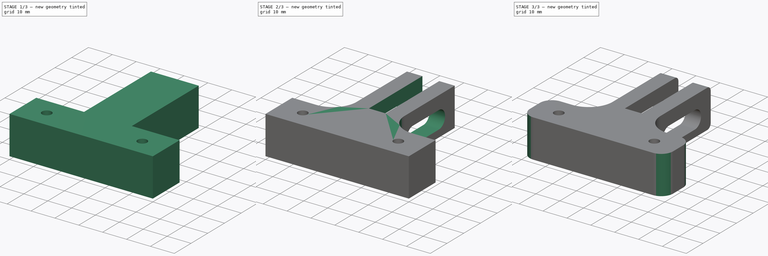
[diagram: build sequence overview — one tinted view per stage of 3, left to right]
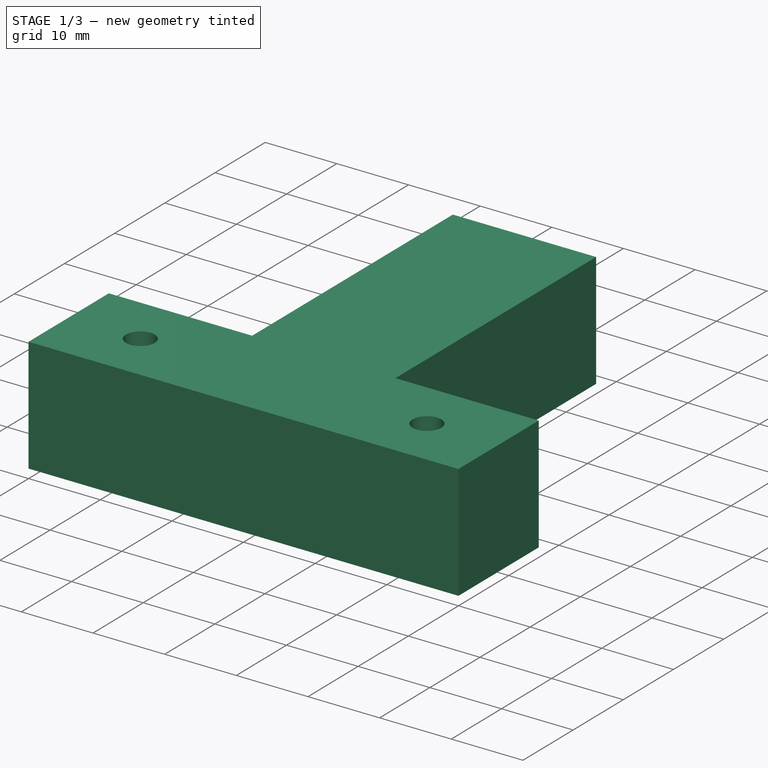
[diagram: stage 1 of 3 — iso view after this stage's code; geometry added in this stage tinted green]
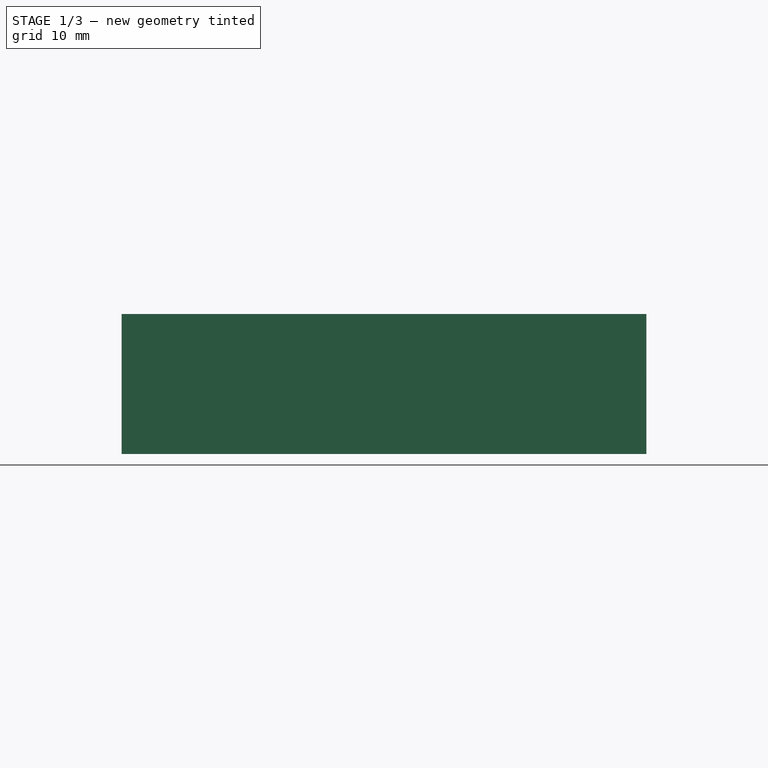
[diagram: stage 1 of 3 — front view after this stage's code; geometry added in this stage tinted green]
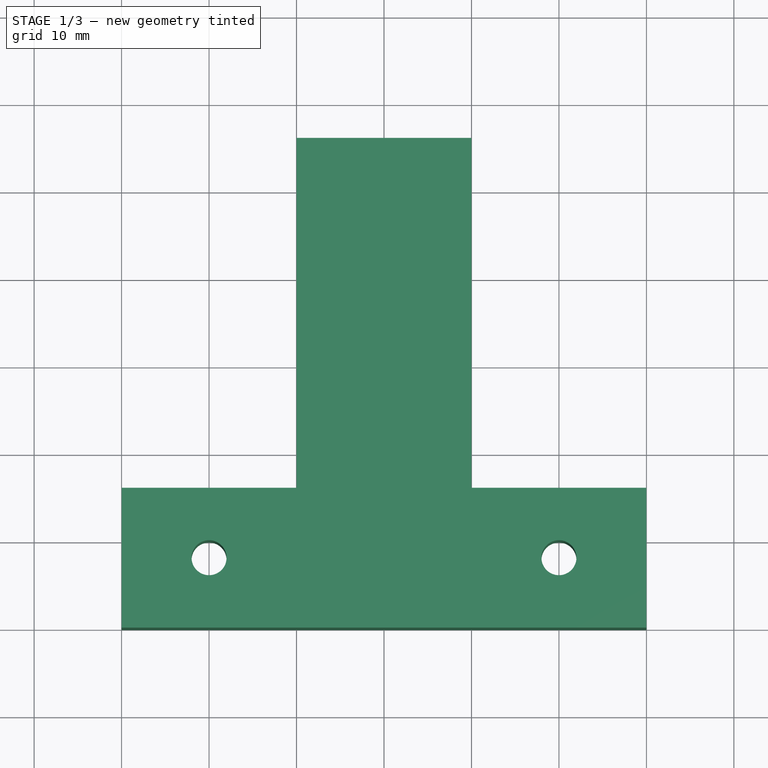
[diagram: stage 1 of 3 — top view after this stage's code; geometry added in this stage tinted green]
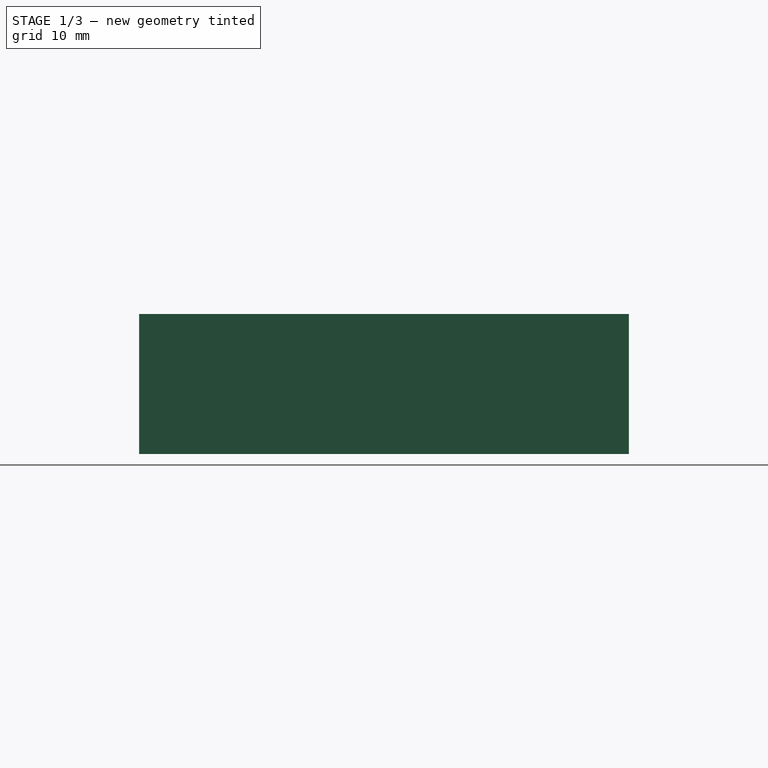
[diagram: stage 1 of 3 — right view after this stage's code; geometry added in this stage tinted green]
FCSTD DOCUMENT  (FreeCAD 1.0RUnknown)
Label: water-valve-bracket
License: All rights reserved
LicenseURL: https://en.wikipedia.org/wiki/All_rights_reserved
objects: Sketcher::SketchObject×4, PartDesign::Fillet×3, PartDesign::Pad×2, PartDesign::Pocket×2, PartDesign::Body×1
note: 30 computed .brp shape members not serialized (recipe doc carries the construction recipe); baked Part::Feature solids carry a one-line shape summary decoded from their .brp

FEATURE [Sketcher::SketchObject] Sketch
  ArcFitTolerance = 1e-06
  AttachmentSupport = -> [XY_Plane]
  FullyConstrained = true
  MakeInternals = false
  MapMode = 5
  sketch-geometry (9):
    g0: LineSegment StartX=0 StartY=0 StartZ=0 EndX=60 EndY=0 EndZ=0
    g1: LineSegment StartX=60 StartY=0 StartZ=0 EndX=60 EndY=16 EndZ=0
    g2: LineSegment StartX=60 StartY=16 StartZ=0 EndX=0 EndY=16 EndZ=0
    g3: LineSegment StartX=0 StartY=16 StartZ=0 EndX=0 EndY=0 EndZ=0
    g4: Circle CenterX=10 CenterY=8 CenterZ=0 NormalX=0 NormalY=0 NormalZ=1 AngleXU=0 Radius=2
    g5: Circle CenterX=50 CenterY=8 CenterZ=0 NormalX=0 NormalY=0 NormalZ=1 AngleXU=0 Radius=2
    g6: LineSegment [constr] StartX=0 StartY=8 StartZ=0 EndX=60 EndY=8 EndZ=0
    g7: LineSegment [constr] StartX=30 StartY=16 StartZ=0 EndX=30 EndY=0 EndZ=0
    g8: GeomPoint X=30 Y=8 Z=0
  constraints (23):
    c: Coincident(g0,g1)
    c: Coincident(g1,g2)
    c: Coincident(g2,g3)
    c: Coincident(g3,g0)
    c: Horizontal(g0)
    c: Horizontal(g2)
    c: Vertical(g1)
    c: Vertical(g3)
    c: Coincident(g0,g-1)
    c: Equal(g4,g5)
    c: Horizontal(g4,g5)
    c: Symmetric(g3,g3,g6)
    c: PointOnObject(g6,g1)
    c: Horizontal(g6)
    c: Symmetric(g2,g2,g7)
    c: Vertical(g7)
    c: DistanceY(g1,g1) = 16
    c: DistanceX(g0,g0) = 60
    c: PointOnObject(g7,g0)
    c: Symmetric(g6,g6,g8)
    c: Diameter(g4) = 4
    c: DistanceX(g4,g5) = 40
    c: Symmetric(g4,g5,g8)
FEATURE [PartDesign::Pad] Pad
  Direction = (0,0,1)
  Length = 16
  Length2 = 10
  Profile = -> Sketch
  ReferenceAxis = -> Sketch [N_Axis]
  Refine = true
  Suppressed = false
  Type = 0
FEATURE [Sketcher::SketchObject] Sketch002
  ArcFitTolerance = 1e-06
  AttachmentSupport = -> [Pad]
  ExternalGeometry = -> [Pad]
  FullyConstrained = true
  MakeInternals = false
  MapMode = 5
  Placement = pos=(0,16,0) rot=(0,0.707107,0.707107;3.14159rad)
  sketch-geometry (6):
    g0: LineSegment StartX=-40 StartY=16 StartZ=0 EndX=-40 EndY=0 EndZ=0
    g1: LineSegment StartX=-40 StartY=0 StartZ=0 EndX=-20 EndY=0 EndZ=0
    g2: LineSegment StartX=-20 StartY=0 StartZ=0 EndX=-20 EndY=16 EndZ=0
    g3: LineSegment StartX=-20 StartY=16 StartZ=0 EndX=-40 EndY=16 EndZ=0
    g4: LineSegment [constr] StartX=-30 StartY=16 StartZ=0 EndX=-30 EndY=0 EndZ=0
    g5: GeomPoint X=-30 Y=16 Z=0
  constraints (16):
    c: Coincident(g0,g1)
    c: Coincident(g1,g2)
    c: Coincident(g2,g3)
    c: Coincident(g3,g0)
    c: Vertical(g0)
    c: Vertical(g2)
    c: Horizontal(g1)
    c: Horizontal(g3)
    c: PointOnObject(g1,g-1)
    c: PointOnObject(g0,g-3)
    c: Distance(g3,g3) = 20
    c: Symmetric(g-3,g-3,g4)
    c: PointOnObject(g4,g-1)
    c: Vertical(g4)
    c: Symmetric(g3,g3,g5)
    c: PointOnObject(g5,g4)
FEATURE [PartDesign::Pad] Pad001
  BaseFeature = -> Pad
  Direction = (0,1,-2e-16)
  Length = 40
  Length2 = 10
  Profile = -> Sketch002
  ReferenceAxis = -> Sketch002 [N_Axis]
  Refine = true
  Suppressed = false
  Type = 0
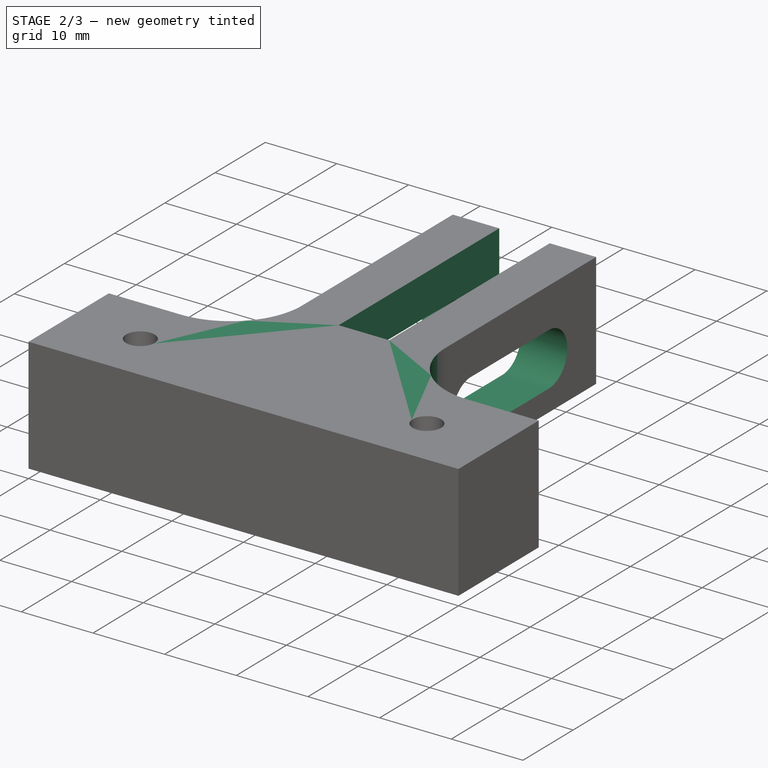
[diagram: stage 2 of 3 — iso view after this stage's code; geometry added in this stage tinted green]
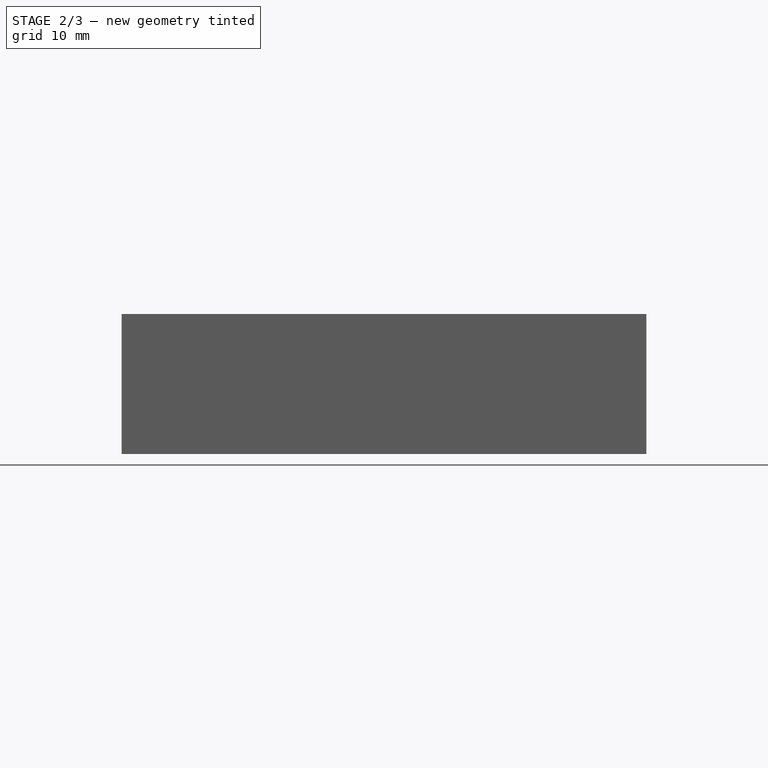
[diagram: stage 2 of 3 — front view after this stage's code; geometry added in this stage tinted green]
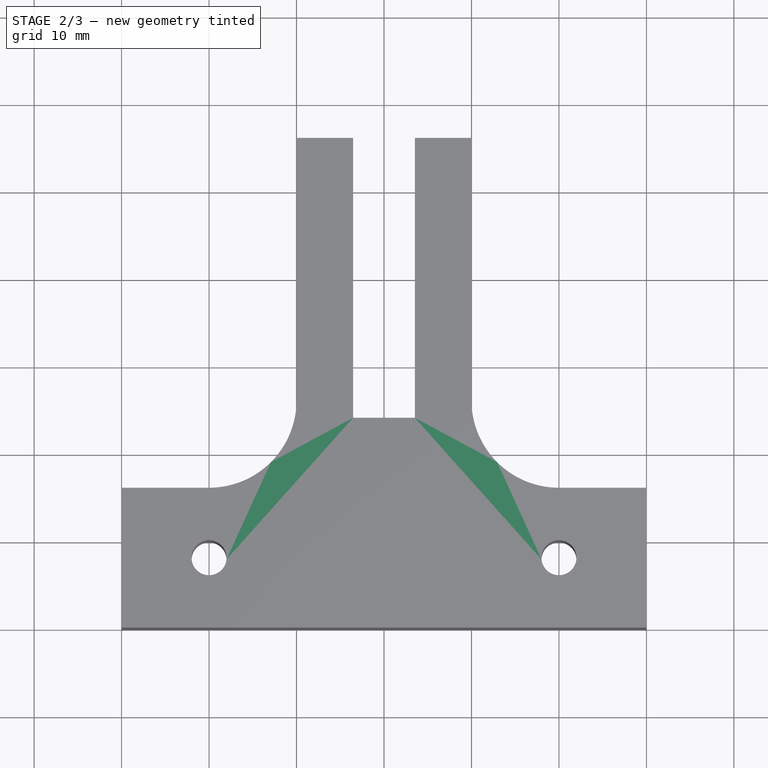
[diagram: stage 2 of 3 — top view after this stage's code; geometry added in this stage tinted green]
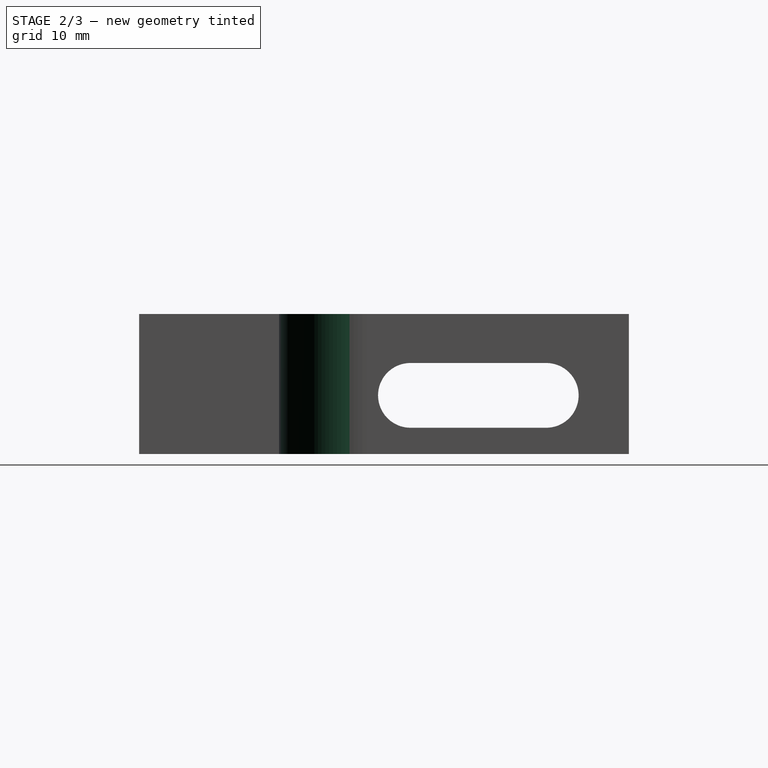
[diagram: stage 2 of 3 — right view after this stage's code; geometry added in this stage tinted green]
FEATURE [Sketcher::SketchObject] Sketch003
  ArcFitTolerance = 1e-06
  AttachmentSupport = -> [Pad001]
  ExternalGeometry = -> [Pad001]
  FullyConstrained = true
  MakeInternals = false
  MapMode = 5
  Placement = pos=(0,2.7e-15,16) rot=(0,0,1;0rad)
  sketch-geometry (7):
    g0: GeomPoint X=30 Y=56 Z=0
    g1: LineSegment [constr] StartX=30 StartY=56 StartZ=0 EndX=30 EndY=16 EndZ=0
    g2: LineSegment StartX=26.475 StartY=24 StartZ=0 EndX=33.525 EndY=24 EndZ=0
    g3: LineSegment StartX=33.525 StartY=24 StartZ=0 EndX=33.525 EndY=56 EndZ=0
    g4: LineSegment StartX=33.525 StartY=56 StartZ=0 EndX=26.475 EndY=56 EndZ=0
    g5: LineSegment StartX=26.475 StartY=56 StartZ=0 EndX=26.475 EndY=24 EndZ=0
    g6: GeomPoint [constr] X=30 Y=40 Z=0
  constraints (17):
    c: Symmetric(g-3,g-3,g0)
    c: Coincident(g1,g0)
    c: Vertical(g1)
    c: Horizontal(g1,g-4)
    c: Coincident(g2,g3)
    c: Coincident(g3,g4)
    c: Coincident(g4,g5)
    c: Coincident(g5,g2)
    c: Horizontal(g2)
    c: Horizontal(g4)
    c: Vertical(g3)
    c: Vertical(g5)
    c: Symmetric(g4,g2,g6)
    c: PointOnObject(g6,g1)
    c: PointOnObject(g3,g-3)
    c: Distance(g2,g2) = 7.05
    c: DistanceY(g3,g3) = 32
FEATURE [PartDesign::Pocket] Pocket
  BaseFeature = -> Pad001
  Direction = (0,0,-1)
  Length = 5
  Length2 = 5
  Profile = -> Sketch003
  ReferenceAxis = -> Sketch003 [N_Axis]
  Refine = true
  Suppressed = false
  Type = 1
FEATURE [Sketcher::SketchObject] Sketch004
  ArcFitTolerance = 1e-06
  AttachmentSupport = -> [Pocket]
  ExternalGeometry = -> [Pocket]
  FullyConstrained = true
  MakeInternals = false
  MapMode = 5
  Placement = pos=(40,0,0) rot=(0.57735,0.57735,0.57735;2.0944rad)
  sketch-geometry (5):
    g0: LineSegment [constr] StartX=56 StartY=6.7 StartZ=0 EndX=16 EndY=6.7 EndZ=0
    g1: ArcOfCircle CenterX=31.02 CenterY=6.7 CenterZ=0 NormalX=0 NormalY=0 NormalZ=1 AngleXU=0 Radius=3.7 StartAngle=1.5708 EndAngle=4.71239
    g2: ArcOfCircle CenterX=46.55 CenterY=6.7 CenterZ=0 NormalX=0 NormalY=0 NormalZ=1 AngleXU=0 Radius=3.7 StartAngle=4.71239 EndAngle=7.85398
    g3: LineSegment StartX=31.02 StartY=10.4 StartZ=0 EndX=46.55 EndY=10.4 EndZ=0
    g4: LineSegment StartX=31.02 StartY=3 StartZ=0 EndX=46.55 EndY=3 EndZ=0
  constraints (14):
    c: PointOnObject(g0,g-4)
    c: Horizontal(g0)
    c: Tangent(g1,g3) = 1.5708
    c: Tangent(g1,g4) = -1.5708
    c: Tangent(g2,g3) = 1.5708
    c: Tangent(g2,g4) = -1.5708
    c: Equal(g1,g2)
    c: Horizontal(g4)
    c: Radius(g1) = 3.7
    c: PointOnObject(g1,g0)
    c: DistanceX(g3,g3) = 15.53
    c: Distance(g0,g-3) = 9.3
    c: Distance(g2,g-4) = 9.45
    c: Vertical(g0,g-3)
FEATURE [PartDesign::Pocket] Pocket001
  BaseFeature = -> Pocket
  Direction = (-1,0,0)
  Length = 5
  Length2 = 5
  Profile = -> Sketch004
  ReferenceAxis = -> Sketch004 [N_Axis]
  Refine = true
  Suppressed = false
  Type = 1
FEATURE [PartDesign::Fillet] Fillet
  Base = -> Pocket001 [Edge33,Edge34]
  BaseFeature = -> Pocket001
  Radius = 10
  Refine = true
  SupportTransform = false
  Suppressed = false
  UseAllEdges = false
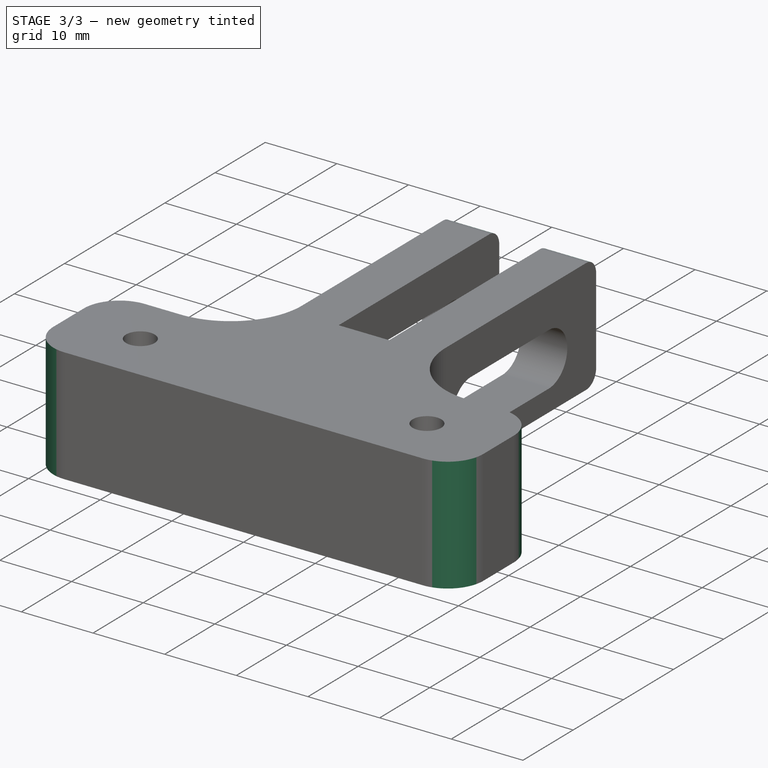
[diagram: stage 3 of 3 — iso view after this stage's code; geometry added in this stage tinted green]
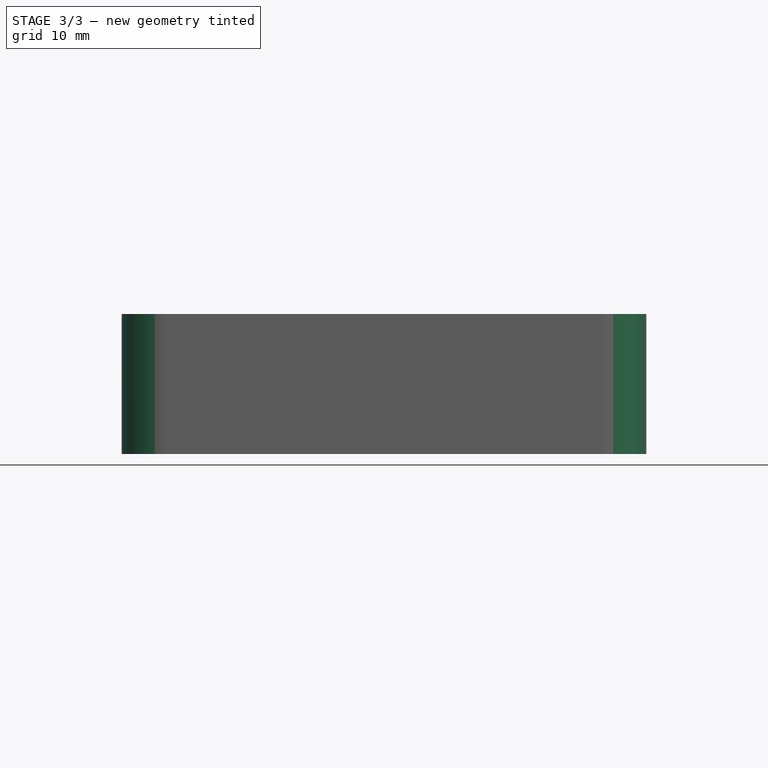
[diagram: stage 3 of 3 — front view after this stage's code; geometry added in this stage tinted green]
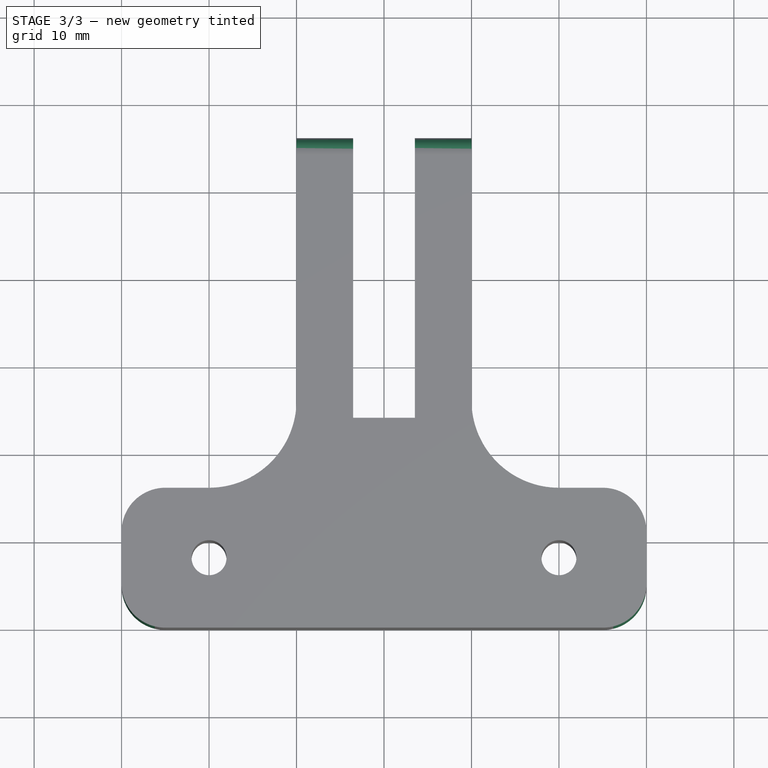
[diagram: stage 3 of 3 — top view after this stage's code; geometry added in this stage tinted green]
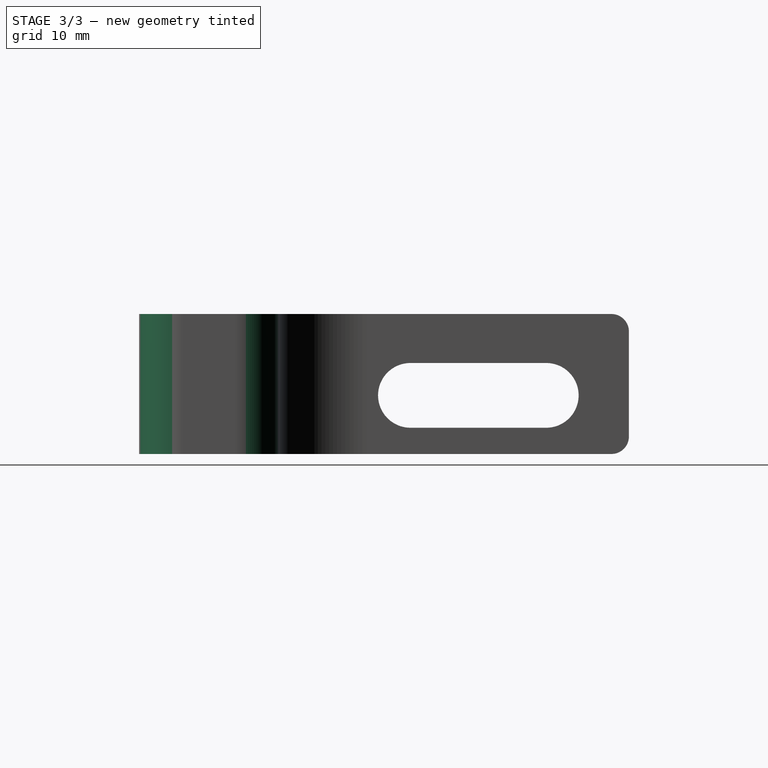
[diagram: stage 3 of 3 — right view after this stage's code; geometry added in this stage tinted green]
FEATURE [PartDesign::Fillet] Fillet001
  Base = -> Fillet [Edge32,Edge60,Edge14,Edge6]
  BaseFeature = -> Fillet
  Radius = 2
  Refine = true
  SupportTransform = false
  Suppressed = false
  UseAllEdges = false
FEATURE [PartDesign::Fillet] Fillet002
  Base = -> Fillet001 [Edge56,Edge52,Edge42,Edge38]
  BaseFeature = -> Fillet001
  Radius = 5
  Refine = true
  SupportTransform = false
  Suppressed = false
  UseAllEdges = false
FEATURE [PartDesign::Body] Body
  AllowCompound = false
  Group = -> [Sketch,Pad,Sketch002,Pad001,Sketch003,Pocket,Sketch004,Pocket001,Fillet,Fillet001,Fillet002]
  Origin = -> Origin
  Tip = -> Fillet002
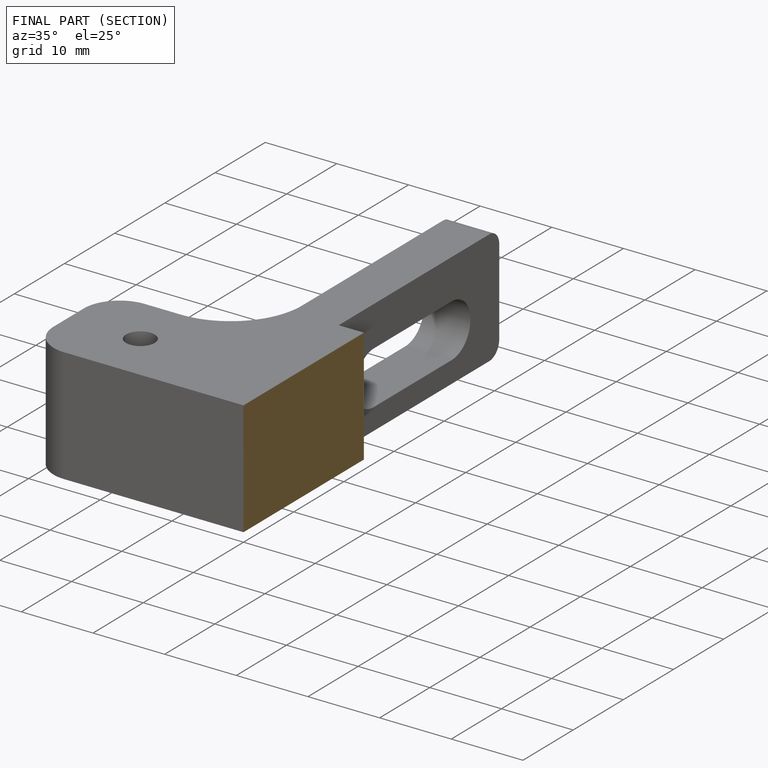
[diagram: finished part — half-section view (interior)]
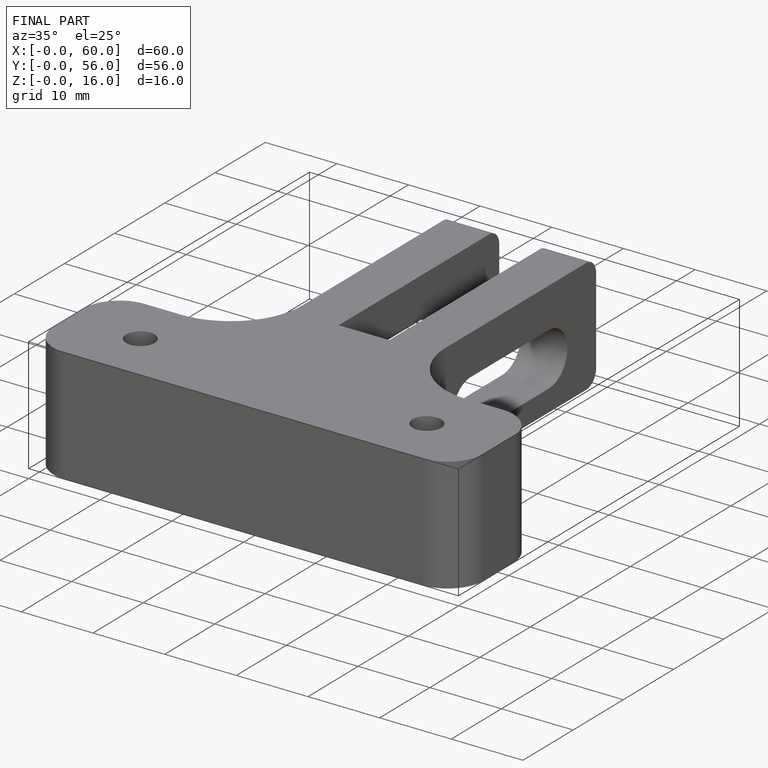
[diagram: finished part — iso view with bounding-box wireframe]
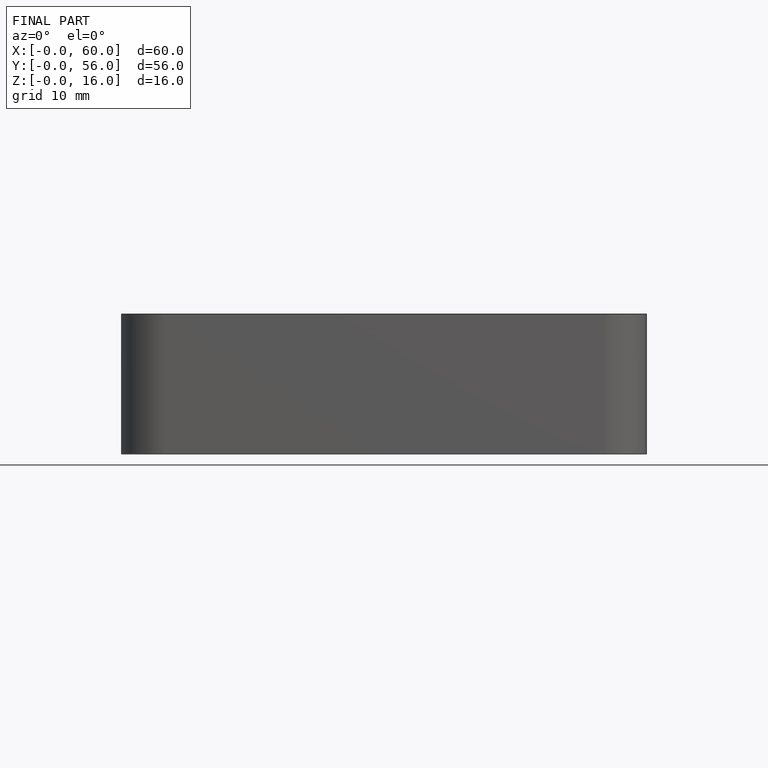
[diagram: finished part — front view with bounding-box wireframe]
